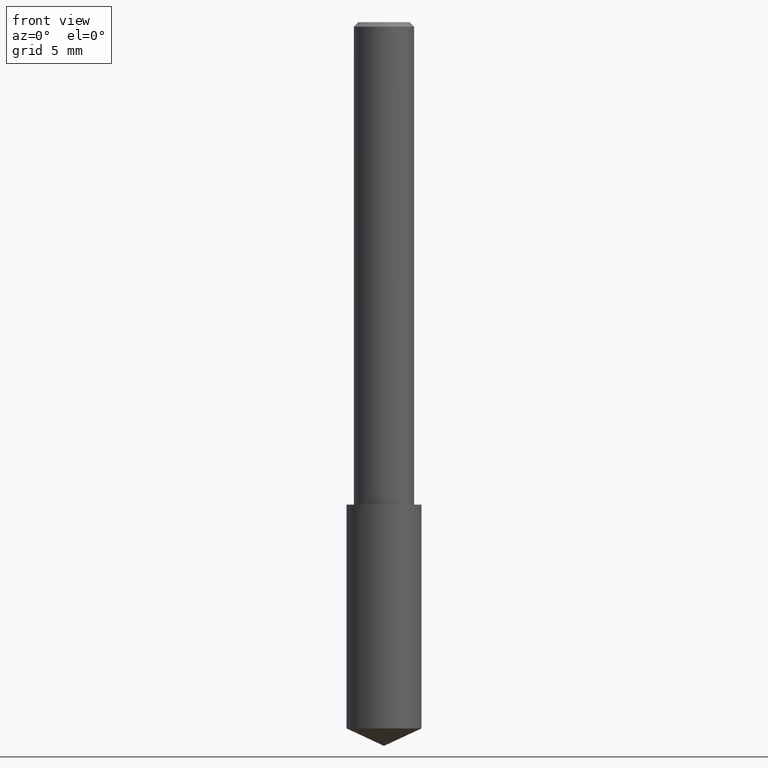
[diagram: clean part render]
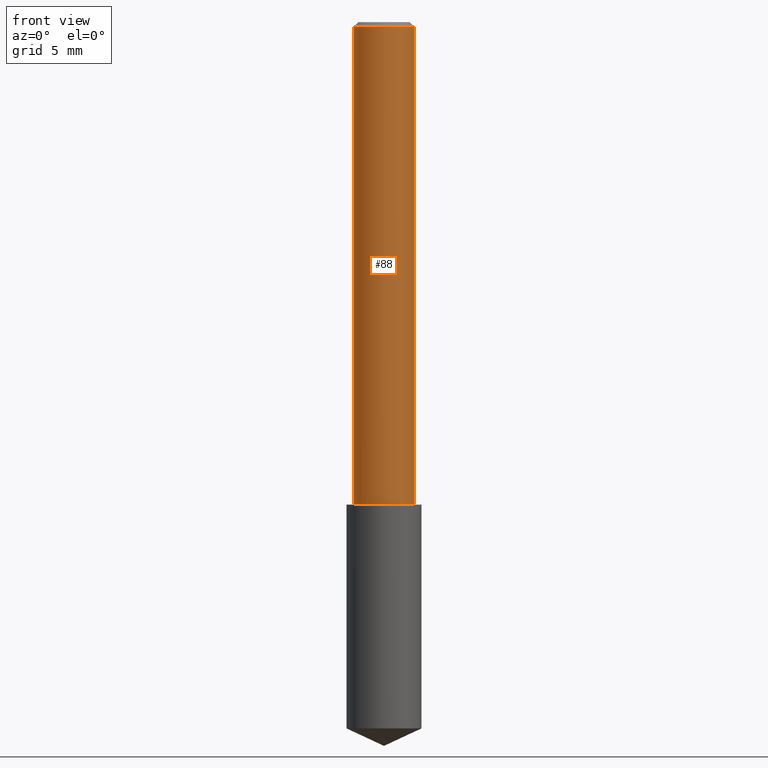
[diagram: same view with one face highlighted and labeled with its STEP entity id]
A machine part, front view. The second image highlights one B-rep face of the part: STEP entity #88.
In plain terms, the highlighted cylindrical surface (edge-blend (fillet) strip) has radius 1.5875 mm, axis along (-0, 0, 1).
Its self-contained STEP definition (entity closure, byte-faithful):
#38 = ORIENTED_EDGE ( 'NONE', *, *, #246, .T. ) ;
#51 = CARTESIAN_POINT ( 'NONE',  ( -0.06250000000000012490, -1.318017778347335489E-15, -1.000000000000000222 ) ) ;
#55 = DIRECTION ( 'NONE',  ( -2.445468806185136877E-29, 3.491481338843145188E-15, 1.000000000000000000 ) ) ;
#74 = CARTESIAN_POINT ( 'NONE',  ( 0.000000000000000000, 0.000000000000000000, 0.000000000000000000 ) ) ;
#75 = CIRCLE ( 'NONE', #269, 0.06250000000000000000 ) ;
#84 = EDGE_LOOP ( 'NONE', ( #236, #123, #38, #322 ) ) ;
#88 = ADVANCED_FACE ( 'NONE', ( #285 ), #311, .T. ) ;
#108 = CARTESIAN_POINT ( 'NONE',  ( 0.06250000000000000000, -4.691678049070463404E-16, -0.009375000000000063838 ) ) ;
#123 = ORIENTED_EDGE ( 'NONE', *, *, #327, .T. ) ;
#125 = CARTESIAN_POINT ( 'NONE',  ( -0.06250000000000000000, -1.318017778347336672E-15, -0.009375000000000063838 ) ) ;
#134 = CARTESIAN_POINT ( 'NONE',  ( 0.06250000000000006939, -4.364351673553921624E-16, 3.047610484872463374E-30 ) ) ;
#137 = VERTEX_POINT ( 'NONE', #125 ) ;
#139 = AXIS2_PLACEMENT_3D ( 'NONE', #158, #258, #326 ) ;
#158 = CARTESIAN_POINT ( 'NONE',  ( 2.445468806185137438E-29, -3.491481338843146371E-15, -1.000000000000000222 ) ) ;
#163 = LINE ( 'NONE', #134, #335 ) ;
#188 = AXIS2_PLACEMENT_3D ( 'NONE', #74, #310, #225 ) ;
#191 = LINE ( 'NONE', #317, #260 ) ;
#197 = VERTEX_POINT ( 'NONE', #51 ) ;
#199 = CIRCLE ( 'NONE', #139, 0.06250000000000012490 ) ;
#204 = EDGE_CURVE ( 'NONE', #197, #137, #191, .T. ) ;
#209 = DIRECTION ( 'NONE',  ( 1.000000000000000000, -6.982962677686266711E-15, 0.000000000000000000 ) ) ;
#210 = EDGE_CURVE ( 'NONE', #137, #265, #75, .T. ) ;
#211 = DIRECTION ( 'NONE',  ( -2.445468806185136597E-29, 3.491481338843145583E-15, 1.000000000000000000 ) ) ;
#225 = DIRECTION ( 'NONE',  ( 1.000000000000000000, -6.982962677686266711E-15, 4.876176775795935793E-29 ) ) ;
#236 = ORIENTED_EDGE ( 'NONE', *, *, #204, .F. ) ;
#246 = EDGE_CURVE ( 'NONE', #299, #265, #163, .T. ) ;
#258 = DIRECTION ( 'NONE',  ( -2.445468806185136597E-29, 3.491481338843145583E-15, 1.000000000000000000 ) ) ;
#260 = VECTOR ( 'NONE', #318, 39.37007874015748143 ) ;
#265 = VERTEX_POINT ( 'NONE', #108 ) ;
#269 = AXIS2_PLACEMENT_3D ( 'NONE', #296, #211, #209 ) ;
#285 = FACE_OUTER_BOUND ( 'NONE', #84, .T. ) ;
#296 = CARTESIAN_POINT ( 'NONE',  ( 2.292627005798581061E-31, -3.273263755165471417E-17, -0.009375000000000063838 ) ) ;
#299 = VERTEX_POINT ( 'NONE', #319 ) ;
#310 = DIRECTION ( 'NONE',  ( -2.445468806185136597E-29, 3.491481338843145583E-15, 1.000000000000000000 ) ) ;
#311 = CYLINDRICAL_SURFACE ( 'NONE', #188, 0.06250000000000006939 ) ;
#317 = CARTESIAN_POINT ( 'NONE',  ( -0.06250000000000006939, 4.440892098500631092E-16, -3.074334431409319267E-30 ) ) ;
#318 = DIRECTION ( 'NONE',  ( -2.445468806185136877E-29, 3.491481338843145188E-15, 1.000000000000000000 ) ) ;
#319 = CARTESIAN_POINT ( 'NONE',  ( 0.06250000000000012490, -3.927916506198539224E-15, -1.000000000000000222 ) ) ;
#322 = ORIENTED_EDGE ( 'NONE', *, *, #210, .F. ) ;
#326 = DIRECTION ( 'NONE',  ( 1.000000000000000000, -6.982962677686264344E-15, 0.000000000000000000 ) ) ;
#327 = EDGE_CURVE ( 'NONE', #197, #299, #199, .T. ) ;
#335 = VECTOR ( 'NONE', #55, 39.37007874015748143 ) ;